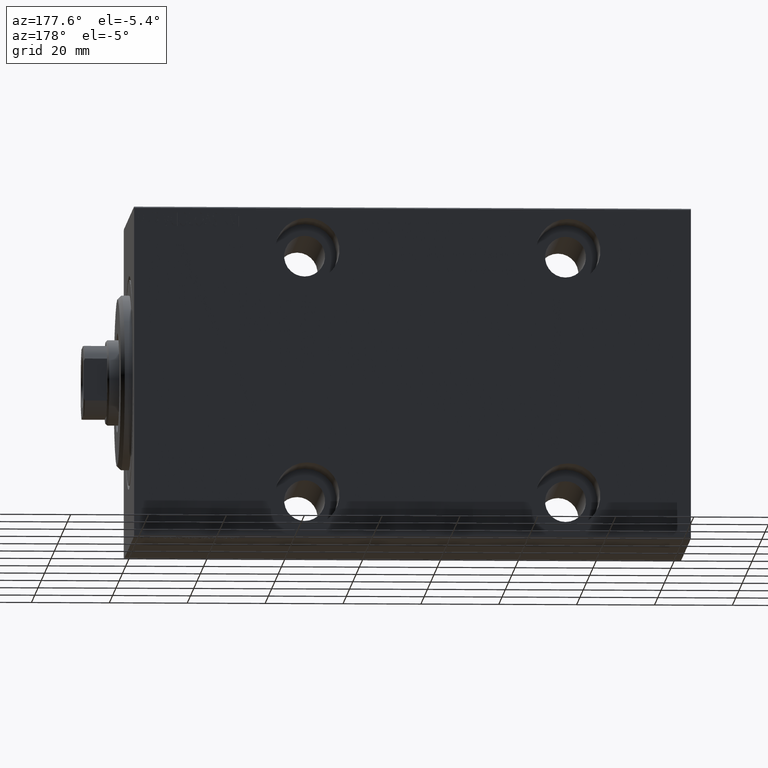
[diagram: clean part render]
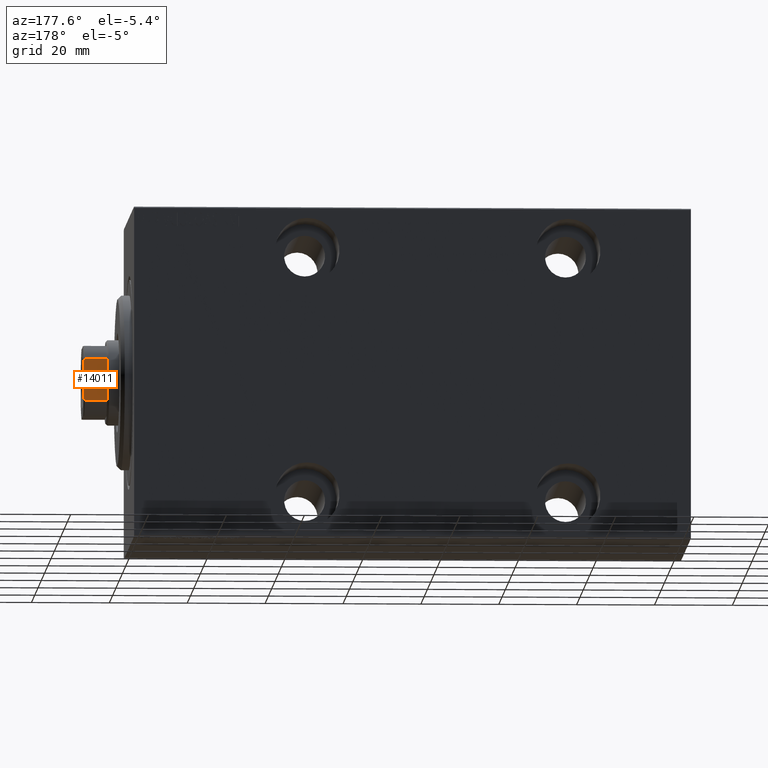
[diagram: same view with one face highlighted and labeled with its STEP entity id]
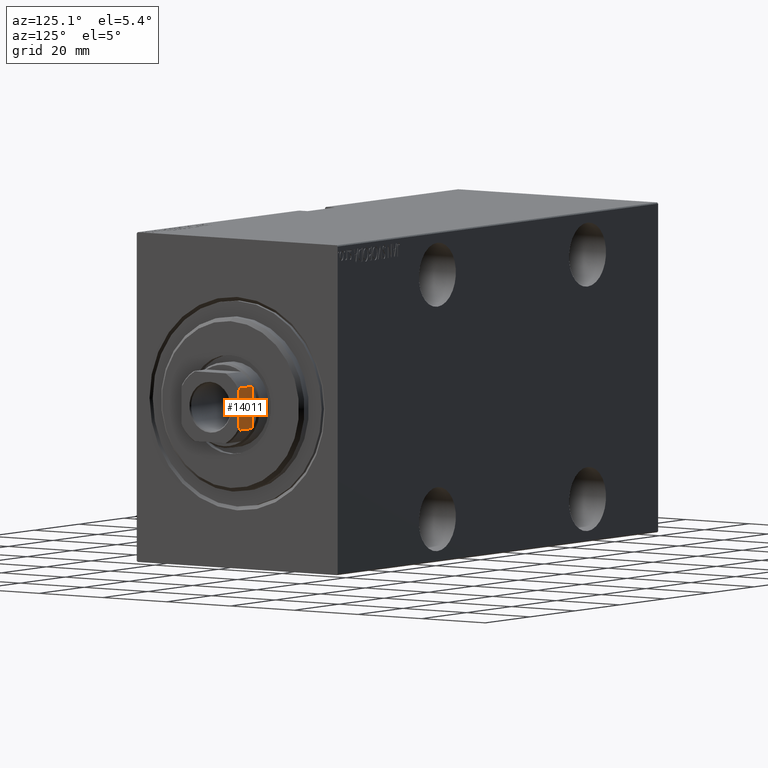
[diagram: same view with one face highlighted and labeled with its STEP entity id]
A machine part, auxiliary view. The second image highlights one B-rep face of the part: STEP entity #14011.
A second angle (auxiliary view) of the same face is appended — the face is thin or edge-on in the first view.
In plain terms, the highlighted planar face has unit normal (0, -1, -0).
Its self-contained STEP definition (entity closure, byte-faithful):
#3953 = DIRECTION ( 'NONE',  ( -1.000000000000000000, -0.000000000000000000, -0.000000000000000000 ) ) ;
#7928 = CARTESIAN_POINT ( 'NONE',  ( -5.207299490555487687, 8.999999999999998224, 142.8035449543007189 ) ) ;
#8149 = CARTESIAN_POINT ( 'NONE',  ( -5.408326913195988794, 8.999999999999998224, 142.7000000000000455 ) ) ;
#8435 = LINE ( 'NONE', #21654, #32033 ) ;
#8553 = FACE_OUTER_BOUND ( 'NONE', #41627, .T. ) ;
#9857 = CARTESIAN_POINT ( 'NONE',  ( 4.800000000000022915, 8.999999999999998224, 143.0000000000000284 ) ) ;
#9989 = VERTEX_POINT ( 'NONE', #19727 ) ;
#10779 = CARTESIAN_POINT ( 'NONE',  ( 4.800000000000022915, 8.999999999999998224, 143.0000000000000284 ) ) ;
#11444 = ORIENTED_EDGE ( 'NONE', *, *, #13603, .T. ) ;
#11792 = ORIENTED_EDGE ( 'NONE', *, *, #12000, .T. ) ;
#12000 = EDGE_CURVE ( 'NONE', #33780, #16714, #8435, .T. ) ;
#12447 = DIRECTION ( 'NONE',  ( 0.000000000000000000, -0.000000000000000000, -1.000000000000000000 ) ) ;
#12777 = ORIENTED_EDGE ( 'NONE', *, *, #18307, .F. ) ;
#13603 = EDGE_CURVE ( 'NONE', #20279, #33780, #33220, .T. ) ;
#14011 = ADVANCED_FACE ( 'NONE', ( #8553 ), #35648, .F. ) ;
#14437 = CARTESIAN_POINT ( 'NONE',  ( -4.800000000000042455, 8.999999999999998224, 143.0000000000000284 ) ) ;
#15523 = CARTESIAN_POINT ( 'NONE',  ( 5.408326913195989682, 8.999999999999998224, -0.001000000000001000089 ) ) ;
#16152 = VECTOR ( 'NONE', #3953, 1000.000000000000000 ) ;
#16714 = VERTEX_POINT ( 'NONE', #27326 ) ;
#17056 = CARTESIAN_POINT ( 'NONE',  ( 5.408326913195989682, 8.999999999999998224, 142.7000000000000171 ) ) ;
#17382 = CARTESIAN_POINT ( 'NONE',  ( -9.000000000000001776, 8.999999999999998224, 137.0000000000000000 ) ) ;
#17446 = VERTEX_POINT ( 'NONE', #9857 ) ;
#18307 = EDGE_CURVE ( 'NONE', #20279, #30148, #21597, .T. ) ;
#19271 = ORIENTED_EDGE ( 'NONE', *, *, #27211, .T. ) ;
#19454 = LINE ( 'NONE', #20306, #24765 ) ;
#19514 = CARTESIAN_POINT ( 'NONE',  ( 5.408326913195989682, 8.999999999999998224, 136.9999999999999716 ) ) ;
#19661 = ORIENTED_EDGE ( 'NONE', *, *, #29055, .T. ) ;
#19727 = CARTESIAN_POINT ( 'NONE',  ( -4.800000000000042455, 8.999999999999998224, 143.0000000000000284 ) ) ;
#20279 = VERTEX_POINT ( 'NONE', #19514 ) ;
#20306 = CARTESIAN_POINT ( 'NONE',  ( -9.000000000000001776, 8.999999999999998224, 143.0000000000000284 ) ) ;
#21362 = CARTESIAN_POINT ( 'NONE',  ( -5.004607318780332825, 8.999999999999998224, 142.9037142029269489 ) ) ;
#21534 = VECTOR ( 'NONE', #25266, 1000.000000000000000 ) ;
#21597 = LINE ( 'NONE', #15523, #21534 ) ;
#21654 = CARTESIAN_POINT ( 'NONE',  ( -5.408326913195988794, 8.999999999999998224, -0.001000000000001000089 ) ) ;
#23113 = B_SPLINE_CURVE_WITH_KNOTS ( 'NONE', 3,
 ( #10779, #23983, #40039, #17056 ),
 .UNSPECIFIED., .F., .F.,
 ( 4, 4 ),
 ( 8.673617379884035472E-19, 0.0006782784334759070109 ),
 .UNSPECIFIED. ) ;
#23983 = CARTESIAN_POINT ( 'NONE',  ( 5.004607318780317726, 8.999999999999998224, 142.9037142029269489 ) ) ;
#24750 = CARTESIAN_POINT ( 'NONE',  ( -5.408326913196353836, 8.999999999999998224, 137.0000000000000000 ) ) ;
#24765 = VECTOR ( 'NONE', #42669, 1000.000000000000000 ) ;
#25266 = DIRECTION ( 'NONE',  ( -0.000000000000000000, -0.000000000000000000, 1.000000000000000000 ) ) ;
#27211 = EDGE_CURVE ( 'NONE', #16714, #9989, #41622, .T. ) ;
#27326 = CARTESIAN_POINT ( 'NONE',  ( -5.408326913195988794, 8.999999999999998224, 142.7000000000000455 ) ) ;
#29055 = EDGE_CURVE ( 'NONE', #17446, #30148, #23113, .T. ) ;
#30148 = VERTEX_POINT ( 'NONE', #30511 ) ;
#30405 = ORIENTED_EDGE ( 'NONE', *, *, #42237, .F. ) ;
#30511 = CARTESIAN_POINT ( 'NONE',  ( 5.408326913195989682, 8.999999999999998224, 142.7000000000000171 ) ) ;
#32033 = VECTOR ( 'NONE', #34884, 1000.000000000000000 ) ;
#33220 = LINE ( 'NONE', #17382, #16152 ) ;
#33780 = VERTEX_POINT ( 'NONE', #24750 ) ;
#34884 = DIRECTION ( 'NONE',  ( -0.000000000000000000, -0.000000000000000000, 1.000000000000000000 ) ) ;
#35007 = DIRECTION ( 'NONE',  ( 0.000000000000000000, -1.000000000000000000, 0.000000000000000000 ) ) ;
#35648 = PLANE ( 'NONE',  #39697 ) ;
#39697 = AXIS2_PLACEMENT_3D ( 'NONE', #41735, #35007, #12447 ) ;
#40039 = CARTESIAN_POINT ( 'NONE',  ( 5.207299490555485910, 8.999999999999998224, 142.8035449543006905 ) ) ;
#41622 = B_SPLINE_CURVE_WITH_KNOTS ( 'NONE', 3,
 ( #8149, #7928, #21362, #14437 ),
 .UNSPECIFIED., .F., .F.,
 ( 4, 4 ),
 ( 0.000000000000000000, 0.0006782784334758760027 ),
 .UNSPECIFIED. ) ;
#41627 = EDGE_LOOP ( 'NONE', ( #30405, #19661, #12777, #11444, #11792, #19271 ) ) ;
#41735 = CARTESIAN_POINT ( 'NONE',  ( -9.000000000000001776, 8.999999999999998224, 143.0000000000000284 ) ) ;
#42237 = EDGE_CURVE ( 'NONE', #17446, #9989, #19454, .T. ) ;
#42669 = DIRECTION ( 'NONE',  ( -1.000000000000000000, -0.000000000000000000, -0.000000000000000000 ) ) ;